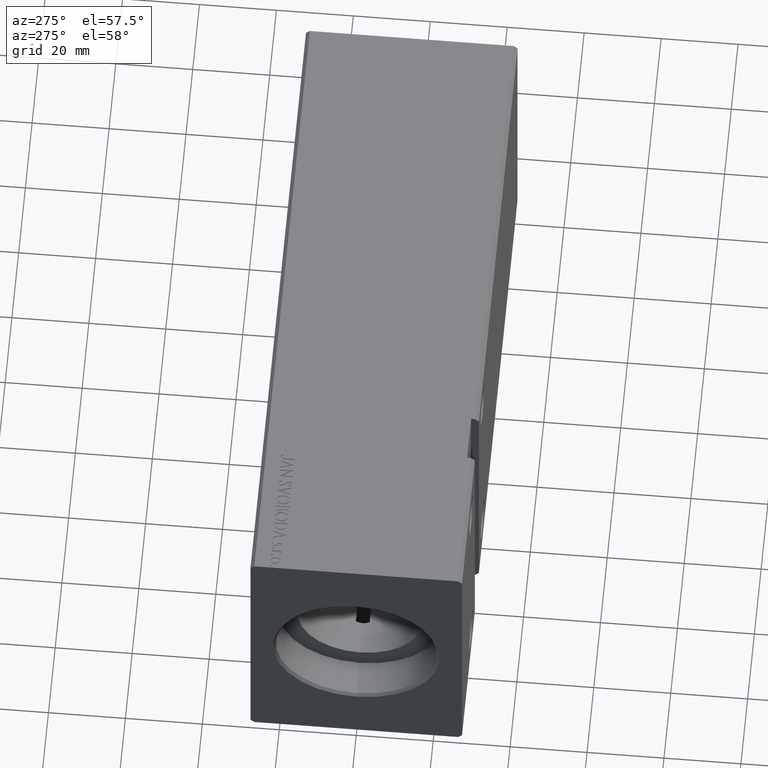
[diagram: clean part render]
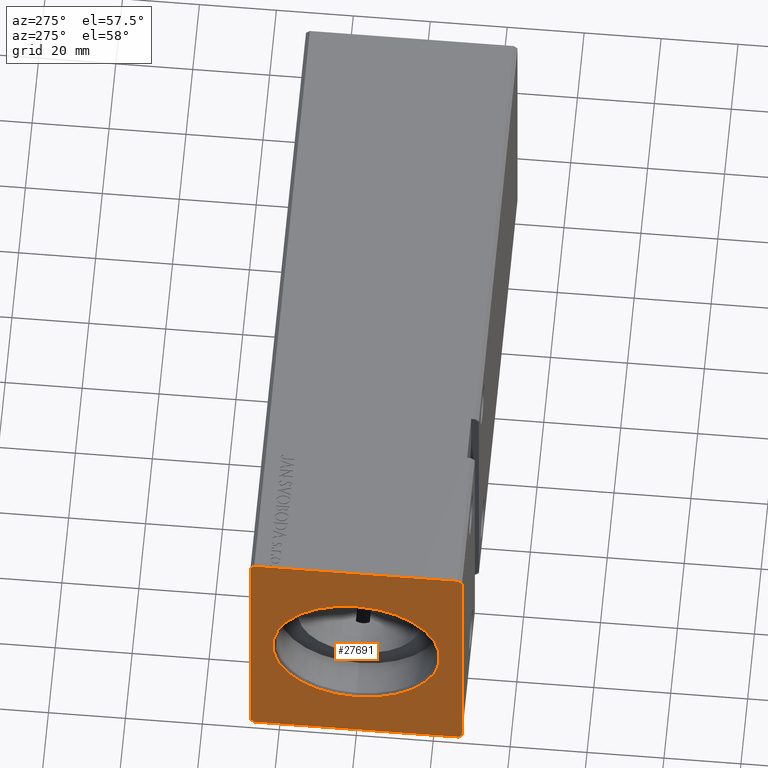
[diagram: same view with one face highlighted and labeled with its STEP entity id]
A machine part, auxiliary view. The second image highlights one B-rep face of the part: STEP entity #27691.
In plain terms, the highlighted planar face has unit normal (1, 0, 0).
Its self-contained STEP definition (entity closure, byte-faithful):
#130 = CARTESIAN_POINT ( 'NONE',  ( 0.000000000000000000, -26.50000000000000355, -37.49999999999999289 ) ) ;
#209 = EDGE_LOOP ( 'NONE', ( #32410, #30627 ) ) ;
#1171 = CARTESIAN_POINT ( 'NONE',  ( 0.000000000000000000, 2.657483554149762655E-15, -21.70000000000005258 ) ) ;
#3689 = AXIS2_PLACEMENT_3D ( 'NONE', #18348, #11979, #39125 ) ;
#4894 = VERTEX_POINT ( 'NONE', #19456 ) ;
#5122 = CARTESIAN_POINT ( 'NONE',  ( 0.000000000000000000, 26.50000000000000711, -37.49999999999999289 ) ) ;
#5134 = CARTESIAN_POINT ( 'NONE',  ( 0.000000000000000000, 26.50000000000000355, 37.50000000000000711 ) ) ;
#5149 = CARTESIAN_POINT ( 'NONE',  ( 0.000000000000000000, 0.000000000000000000, 21.70000000000005258 ) ) ;
#6162 = AXIS2_PLACEMENT_3D ( 'NONE', #10323, #16098, #22466 ) ;
#6250 = AXIS2_PLACEMENT_3D ( 'NONE', #19432, #13652, #28208 ) ;
#6302 = LINE ( 'NONE', #130, #31000 ) ;
#6890 = FACE_OUTER_BOUND ( 'NONE', #26517, .T. ) ;
#7629 = LINE ( 'NONE', #25362, #20017 ) ;
#7955 = ORIENTED_EDGE ( 'NONE', *, *, #34516, .F. ) ;
#8638 = ORIENTED_EDGE ( 'NONE', *, *, #23607, .F. ) ;
#9203 = VECTOR ( 'NONE', #21595, 1000.000000000000000 ) ;
#9642 = CARTESIAN_POINT ( 'NONE',  ( 0.000000000000000000, 27.50000000000000711, -36.49999999999999289 ) ) ;
#10070 = FACE_BOUND ( 'NONE', #209, .T. ) ;
#10323 = CARTESIAN_POINT ( 'NONE',  ( 0.000000000000000000, 0.000000000000000000, 0.000000000000000000 ) ) ;
#10446 = EDGE_CURVE ( 'NONE', #22441, #36193, #18209, .T. ) ;
#10558 = ORIENTED_EDGE ( 'NONE', *, *, #10446, .F. ) ;
#11702 = DIRECTION ( 'NONE',  ( 0.000000000000000000, 1.000000000000000000, 0.000000000000000000 ) ) ;
#11979 = DIRECTION ( 'NONE',  ( 1.000000000000000000, 0.000000000000000000, 0.000000000000000000 ) ) ;
#12374 = CARTESIAN_POINT ( 'NONE',  ( 0.000000000000000000, 26.50000000000000711, -37.49999999999999289 ) ) ;
#12700 = CARTESIAN_POINT ( 'NONE',  ( 0.000000000000000000, 27.50000000000000355, 36.50000000000000711 ) ) ;
#13159 = CARTESIAN_POINT ( 'NONE',  ( 0.000000000000000000, -27.50000000000000355, -36.49999999999998579 ) ) ;
#13428 = VERTEX_POINT ( 'NONE', #1171 ) ;
#13564 = EDGE_CURVE ( 'NONE', #4894, #22441, #13902, .T. ) ;
#13652 = DIRECTION ( 'NONE',  ( 1.000000000000000000, 0.000000000000000000, 0.000000000000000000 ) ) ;
#13902 = LINE ( 'NONE', #5134, #23772 ) ;
#14983 = EDGE_CURVE ( 'NONE', #28326, #26373, #33769, .T. ) ;
#16098 = DIRECTION ( 'NONE',  ( 1.000000000000000000, 0.000000000000000000, 0.000000000000000000 ) ) ;
#16326 = EDGE_CURVE ( 'NONE', #23179, #17681, #7629, .T. ) ;
#16606 = ORIENTED_EDGE ( 'NONE', *, *, #21256, .F. ) ;
#16945 = CARTESIAN_POINT ( 'NONE',  ( 0.000000000000000000, -27.50000000000000711, 36.50000000000000711 ) ) ;
#16950 = VECTOR ( 'NONE', #22522, 1000.000000000000000 ) ;
#17681 = VERTEX_POINT ( 'NONE', #22607 ) ;
#17710 = ORIENTED_EDGE ( 'NONE', *, *, #14983, .F. ) ;
#18031 = ORIENTED_EDGE ( 'NONE', *, *, #33724, .F. ) ;
#18209 = LINE ( 'NONE', #27764, #19901 ) ;
#18348 = CARTESIAN_POINT ( 'NONE',  ( 0.000000000000000000, 0.000000000000000000, 0.000000000000000000 ) ) ;
#19432 = CARTESIAN_POINT ( 'NONE',  ( 0.000000000000000000, 0.000000000000000000, 0.000000000000000000 ) ) ;
#19456 = CARTESIAN_POINT ( 'NONE',  ( 0.000000000000000000, 26.50000000000000355, 37.50000000000000711 ) ) ;
#19738 = LINE ( 'NONE', #16945, #16950 ) ;
#19901 = VECTOR ( 'NONE', #30370, 1000.000000000000114 ) ;
#20017 = VECTOR ( 'NONE', #22166, 1000.000000000000114 ) ;
#21256 = EDGE_CURVE ( 'NONE', #36193, #23179, #19738, .T. ) ;
#21595 = DIRECTION ( 'NONE',  ( 0.000000000000000000, -4.752667057470704875E-17, 1.000000000000000000 ) ) ;
#22166 = DIRECTION ( 'NONE',  ( 0.000000000000000000, 0.7071067811865451302, -0.7071067811865500152 ) ) ;
#22311 = DIRECTION ( 'NONE',  ( 0.000000000000000000, -0.7071067811865474617, 0.7071067811865474617 ) ) ;
#22441 = VERTEX_POINT ( 'NONE', #36633 ) ;
#22466 = DIRECTION ( 'NONE',  ( 0.000000000000000000, 0.000000000000000000, -1.000000000000000000 ) ) ;
#22522 = DIRECTION ( 'NONE',  ( 0.000000000000000000, 4.752667057470705491E-17, -1.000000000000000000 ) ) ;
#22607 = CARTESIAN_POINT ( 'NONE',  ( 0.000000000000000000, -26.50000000000000355, -37.49999999999999289 ) ) ;
#23179 = VERTEX_POINT ( 'NONE', #13159 ) ;
#23350 = CIRCLE ( 'NONE', #6162, 21.70000000000005258 ) ;
#23385 = EDGE_CURVE ( 'NONE', #13428, #37979, #23350, .T. ) ;
#23571 = CARTESIAN_POINT ( 'NONE',  ( 0.000000000000000000, -27.50000000000000711, 36.50000000000000711 ) ) ;
#23607 = EDGE_CURVE ( 'NONE', #17681, #32880, #6302, .T. ) ;
#23772 = VECTOR ( 'NONE', #32648, 1000.000000000000000 ) ;
#24718 = DIRECTION ( 'NONE',  ( 0.000000000000000000, 0.7071067811865474617, 0.7071067811865474617 ) ) ;
#25342 = CARTESIAN_POINT ( 'NONE',  ( 0.000000000000000000, 27.50000000000000711, -36.49999999999999289 ) ) ;
#25362 = CARTESIAN_POINT ( 'NONE',  ( 0.000000000000000000, -27.50000000000000355, -36.49999999999998579 ) ) ;
#25514 = CARTESIAN_POINT ( 'NONE',  ( 0.000000000000000000, 27.50000000000000355, 36.50000000000000711 ) ) ;
#25613 = PLANE ( 'NONE',  #6250 ) ;
#26373 = VERTEX_POINT ( 'NONE', #12700 ) ;
#26517 = EDGE_LOOP ( 'NONE', ( #7955, #17710, #18031, #8638, #27779, #16606, #10558, #32124 ) ) ;
#27408 = EDGE_CURVE ( 'NONE', #37979, #13428, #31697, .T. ) ;
#27691 = ADVANCED_FACE ( 'NONE', ( #10070, #6890 ), #25613, .F. ) ;
#27764 = CARTESIAN_POINT ( 'NONE',  ( 0.000000000000000000, -26.50000000000000711, 37.50000000000000711 ) ) ;
#27779 = ORIENTED_EDGE ( 'NONE', *, *, #16326, .F. ) ;
#28208 = DIRECTION ( 'NONE',  ( 0.000000000000000000, 0.000000000000000000, -1.000000000000000000 ) ) ;
#28326 = VERTEX_POINT ( 'NONE', #25342 ) ;
#30370 = DIRECTION ( 'NONE',  ( 0.000000000000000000, -0.7071067811865474617, -0.7071067811865474617 ) ) ;
#30627 = ORIENTED_EDGE ( 'NONE', *, *, #23385, .T. ) ;
#31000 = VECTOR ( 'NONE', #11702, 1000.000000000000000 ) ;
#31697 = CIRCLE ( 'NONE', #3689, 21.70000000000005258 ) ;
#32124 = ORIENTED_EDGE ( 'NONE', *, *, #13564, .F. ) ;
#32410 = ORIENTED_EDGE ( 'NONE', *, *, #27408, .T. ) ;
#32648 = DIRECTION ( 'NONE',  ( 0.000000000000000000, -1.000000000000000000, 0.000000000000000000 ) ) ;
#32880 = VERTEX_POINT ( 'NONE', #5122 ) ;
#33724 = EDGE_CURVE ( 'NONE', #32880, #28326, #34107, .T. ) ;
#33769 = LINE ( 'NONE', #9642, #9203 ) ;
#34107 = LINE ( 'NONE', #12374, #36317 ) ;
#34516 = EDGE_CURVE ( 'NONE', #26373, #4894, #37299, .T. ) ;
#35043 = VECTOR ( 'NONE', #22311, 1000.000000000000114 ) ;
#36193 = VERTEX_POINT ( 'NONE', #23571 ) ;
#36317 = VECTOR ( 'NONE', #24718, 1000.000000000000114 ) ;
#36633 = CARTESIAN_POINT ( 'NONE',  ( 0.000000000000000000, -26.50000000000000711, 37.50000000000000711 ) ) ;
#37299 = LINE ( 'NONE', #25514, #35043 ) ;
#37979 = VERTEX_POINT ( 'NONE', #5149 ) ;
#39125 = DIRECTION ( 'NONE',  ( 0.000000000000000000, 0.000000000000000000, -1.000000000000000000 ) ) ;